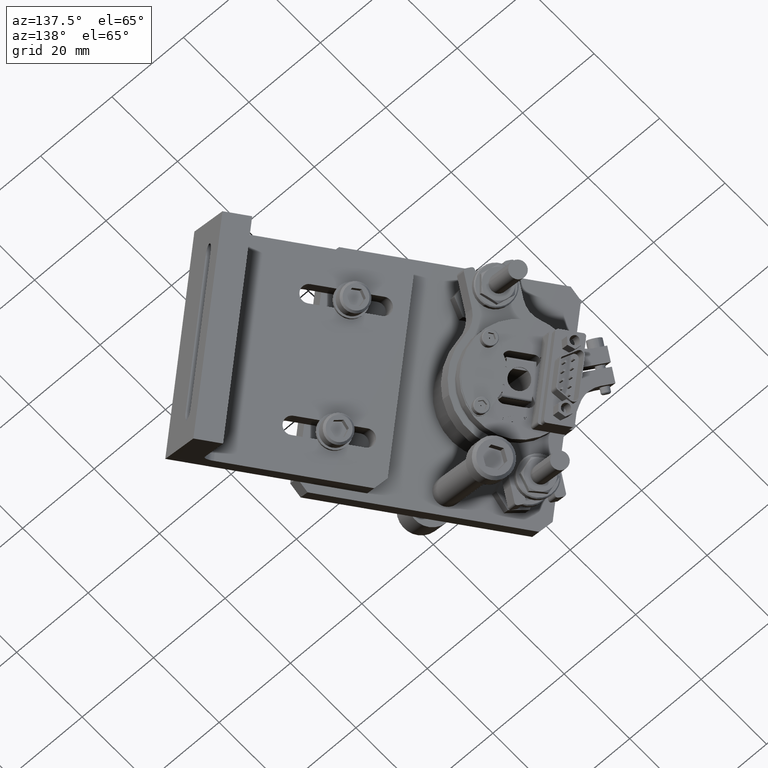
[diagram: clean part render]
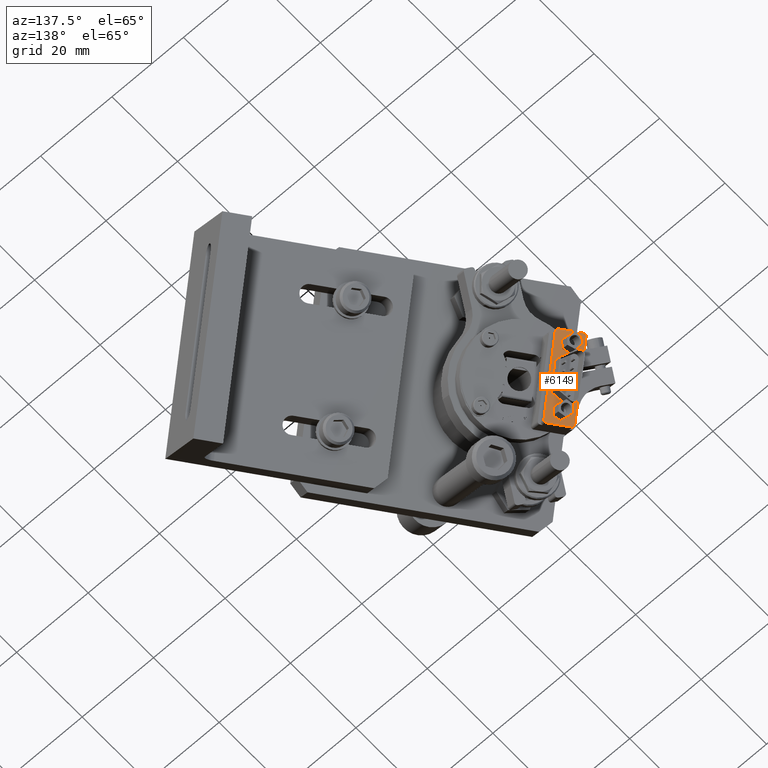
[diagram: same view with one face highlighted and labeled with its STEP entity id]
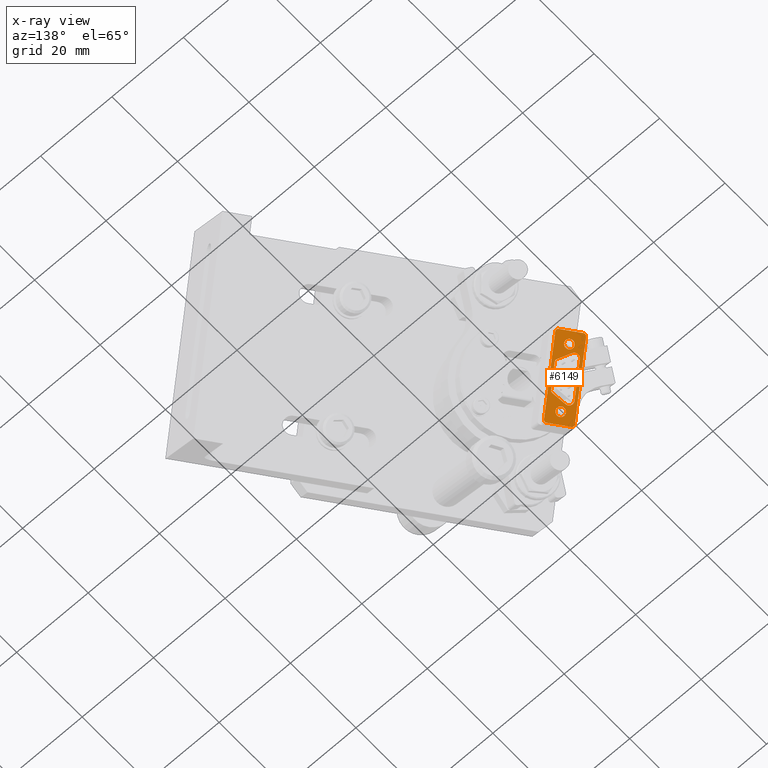
[diagram: x-ray of the same camera — body ghosted, the highlighted face saturated]
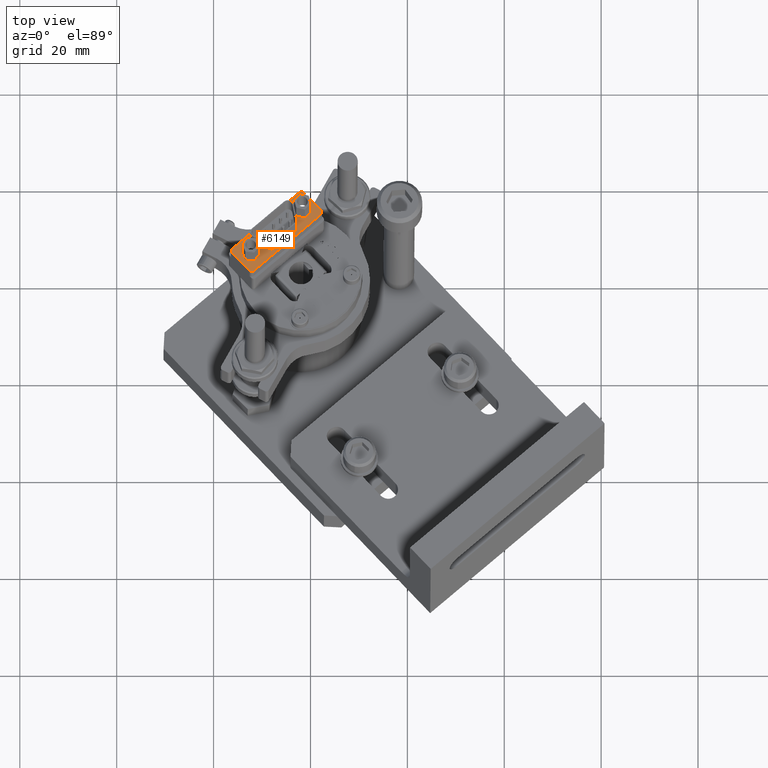
[diagram: same view with one face highlighted and labeled with its STEP entity id]
A machine part, auxiliary view. The second image highlights one B-rep face of the part: STEP entity #6149.
The next image is the same camera in x-ray: the body ghosted, the highlighted face saturated — about 0% of this face is hidden behind the body in this view.
A second angle (top view) of the same face is appended — the face is thin or edge-on in the first view.
In plain terms, the highlighted planar face has unit normal (-0.0041, -0.3425, -0.9395).
Its self-contained STEP definition (entity closure, byte-faithful):
#2667 = EDGE_CURVE ( 'NONE', #3243, #3244, #8593, .T. ) ;
#2717 = EDGE_CURVE ( 'NONE', #3277, #3278, #8658, .T. ) ;
#2721 = EDGE_CURVE ( 'NONE', #3278, #3281, #8668, .T. ) ;
#2724 = EDGE_CURVE ( 'NONE', #3281, #3283, #8670, .T. ) ;
#2727 = EDGE_CURVE ( 'NONE', #3283, #3285, #8678, .T. ) ;
#2730 = EDGE_CURVE ( 'NONE', #3285, #3287, #8680, .T. ) ;
#2734 = EDGE_CURVE ( 'NONE', #3287, #3243, #8689, .T. ) ;
#2735 = EDGE_CURVE ( 'NONE', #3244, #3289, #8688, .T. ) ;
#3243 = VERTEX_POINT ( 'NONE', #10372 ) ;
#3244 = VERTEX_POINT ( 'NONE', #10373 ) ;
#3277 = VERTEX_POINT ( 'NONE', #10406 ) ;
#3278 = VERTEX_POINT ( 'NONE', #10407 ) ;
#3281 = VERTEX_POINT ( 'NONE', #10410 ) ;
#3283 = VERTEX_POINT ( 'NONE', #10412 ) ;
#3285 = VERTEX_POINT ( 'NONE', #10414 ) ;
#3287 = VERTEX_POINT ( 'NONE', #10416 ) ;
#3289 = VERTEX_POINT ( 'NONE', #10418 ) ;
#3345 = VERTEX_POINT ( 'NONE', #10474 ) ;
#3346 = VERTEX_POINT ( 'NONE', #10475 ) ;
#3347 = VERTEX_POINT ( 'NONE', #10476 ) ;
#3348 = VERTEX_POINT ( 'NONE', #10477 ) ;
#3349 = VERTEX_POINT ( 'NONE', #10478 ) ;
#3350 = VERTEX_POINT ( 'NONE', #10479 ) ;
#3351 = VERTEX_POINT ( 'NONE', #10480 ) ;
#3352 = VERTEX_POINT ( 'NONE', #10481 ) ;
#3353 = VERTEX_POINT ( 'NONE', #10482 ) ;
#3354 = VERTEX_POINT ( 'NONE', #10483 ) ;
#3355 = VERTEX_POINT ( 'NONE', #10484 ) ;
#3356 = VERTEX_POINT ( 'NONE', #10485 ) ;
#6149 = ADVANCED_FACE ( 'NONE', ( #9040, #9041, #9042, #9043 ), #11612, .F. ) ;
#7514 = AXIS2_PLACEMENT_3D ( 'NONE', #9636, #9637, #9638 ) ;
#7547 = AXIS2_PLACEMENT_3D ( 'NONE', #9777, #9778, #9779 ) ;
#7549 = AXIS2_PLACEMENT_3D ( 'NONE', #9791, #9792, #9793 ) ;
#7552 = AXIS2_PLACEMENT_3D ( 'NONE', #9808, #9809, #9810 ) ;
#7740 = AXIS2_PLACEMENT_3D ( 'NONE', #11613, #11614, #11615 ) ;
#7800 = AXIS2_PLACEMENT_3D ( 'NONE', #12008, #12009, #12010 ) ;
#7801 = AXIS2_PLACEMENT_3D ( 'NONE', #12019, #12020, #12021 ) ;
#7802 = AXIS2_PLACEMENT_3D ( 'NONE', #12028, #12029, #12030 ) ;
#7803 = AXIS2_PLACEMENT_3D ( 'NONE', #12037, #12038, #12039 ) ;
#7804 = AXIS2_PLACEMENT_3D ( 'NONE', #12044, #12045, #12046 ) ;
#7805 = AXIS2_PLACEMENT_3D ( 'NONE', #12047, #12048, #12049 ) ;
#7806 = AXIS2_PLACEMENT_3D ( 'NONE', #12050, #12051, #12052 ) ;
#7807 = AXIS2_PLACEMENT_3D ( 'NONE', #12053, #12054, #12055 ) ;
#7808 = AXIS2_PLACEMENT_3D ( 'NONE', #12056, #12057, #12058 ) ;
#8593 = CIRCLE ( 'NONE', #7514, 0.04581782898034570500 ) ;
#8658 = LINE ( 'NONE', #9769, #8660 ) ;
#8660 = VECTOR ( 'NONE', #9770, 39.37007874015748100 ) ;
#8668 = CIRCLE ( 'NONE', #7547, 0.02814010095036812900 ) ;
#8670 = LINE ( 'NONE', #9785, #8672 ) ;
#8672 = VECTOR ( 'NONE', #9786, 39.37007874015748900 ) ;
#8678 = CIRCLE ( 'NONE', #7549, 0.04581782898034570500 ) ;
#8680 = LINE ( 'NONE', #9799, #8682 ) ;
#8682 = VECTOR ( 'NONE', #9800, 39.37007874015748100 ) ;
#8688 = LINE ( 'NONE', #9811, #8690 ) ;
#8689 = CIRCLE ( 'NONE', #7552, 0.04581782898034570500 ) ;
#8690 = VECTOR ( 'NONE', #9812, 39.37007874015748900 ) ;
#9040 = FACE_BOUND ( 'NONE', #17864, .T. ) ;
#9041 = FACE_BOUND ( 'NONE', #17863, .T. ) ;
#9042 = FACE_OUTER_BOUND ( 'NONE', #17862, .T. ) ;
#9043 = FACE_BOUND ( 'NONE', #17861, .T. ) ;
#9176 = CIRCLE ( 'NONE', #7800, 0.02500000000000000500 ) ;
#9180 = LINE ( 'NONE', #12015, #9181 ) ;
#9181 = VECTOR ( 'NONE', #12016, 39.37007874015748100 ) ;
#9185 = CIRCLE ( 'NONE', #7801, 0.02500000000000000500 ) ;
#9187 = LINE ( 'NONE', #12024, #9188 ) ;
#9188 = VECTOR ( 'NONE', #12025, 39.37007874015748100 ) ;
#9192 = CIRCLE ( 'NONE', #7802, 0.02500000000000000500 ) ;
#9196 = LINE ( 'NONE', #12035, #9197 ) ;
#9197 = VECTOR ( 'NONE', #12036, 39.37007874015748100 ) ;
#9199 = CIRCLE ( 'NONE', #7803, 0.02500000000000000500 ) ;
#9201 = LINE ( 'NONE', #12042, #9202 ) ;
#9202 = VECTOR ( 'NONE', #12043, 39.37007874015748100 ) ;
#9203 = CIRCLE ( 'NONE', #7804, 0.04399999999999999700 ) ;
#9204 = CIRCLE ( 'NONE', #7805, 0.04399999999999999700 ) ;
#9205 = CIRCLE ( 'NONE', #7806, 0.04400000000000006700 ) ;
#9206 = CIRCLE ( 'NONE', #7807, 0.04400000000000006700 ) ;
#9207 = CIRCLE ( 'NONE', #7808, 0.02814010095036819900 ) ;
#9636 = CARTESIAN_POINT ( 'NONE',  ( 0.2026667568198559400, 0.2649675197779065600, -1.252784718323217300 ) ) ;
#9637 = DIRECTION ( 'NONE',  ( 0.0000000000000000000, 0.0000000000000000000, -1.000000000000000000 ) ) ;
#9638 = DIRECTION ( 'NONE',  ( -1.000000000000000000, 0.0000000000000000000, 0.0000000000000000000 ) ) ;
#9769 = CARTESIAN_POINT ( 'NONE',  ( 0.1462483841439356800, 0.1072853487582522000, -1.252784718323217300 ) ) ;
#9770 = DIRECTION ( 'NONE',  ( -1.000000000000000000, 3.405543026300700000E-016, 0.0000000000000000000 ) ) ;
#9777 = CARTESIAN_POINT ( 'NONE',  ( -0.08927921254353267400, 0.1354254497086204400, -1.252784718323217300 ) ) ;
#9778 = DIRECTION ( 'NONE',  ( 0.0000000000000000000, 0.0000000000000000000, -1.000000000000000000 ) ) ;
#9779 = DIRECTION ( 'NONE',  ( 1.000000000000000000, 0.0000000000000000000, 0.0000000000000000000 ) ) ;
#9785 = CARTESIAN_POINT ( 'NONE',  ( -0.1850854019913690300, 0.2415608253847597600, -1.252784718323217300 ) ) ;
#9786 = DIRECTION ( 'NONE',  ( -0.5108643275784094900, 0.8596613512353916700, 0.0000000000000000000 ) ) ;
#9791 = CARTESIAN_POINT ( 'NONE',  ( -0.1456975852194528900, 0.2649675197779066100, -1.252784718323217300 ) ) ;
#9792 = DIRECTION ( 'NONE',  ( 0.0000000000000000000, 0.0000000000000000000, -1.000000000000000000 ) ) ;
#9793 = DIRECTION ( 'NONE',  ( 1.000000000000000000, 0.0000000000000000000, 0.0000000000000000000 ) ) ;
#9799 = CARTESIAN_POINT ( 'NONE',  ( 0.2026667568198559400, 0.3107853487582522600, -1.252784718323217300 ) ) ;
#9800 = DIRECTION ( 'NONE',  ( 1.000000000000000000, -1.731133083254708900E-016, 0.0000000000000000000 ) ) ;
#9808 = CARTESIAN_POINT ( 'NONE',  ( 0.2026667568198559400, 0.2649675197779065600, -1.252784718323217300 ) ) ;
#9809 = DIRECTION ( 'NONE',  ( 0.0000000000000000000, 0.0000000000000000000, -1.000000000000000000 ) ) ;
#9810 = DIRECTION ( 'NONE',  ( -1.000000000000000000, 0.0000000000000000000, 0.0000000000000000000 ) ) ;
#9811 = CARTESIAN_POINT ( 'NONE',  ( 0.2420545735917721000, 0.2415608253847597000, -1.252784718323217300 ) ) ;
#9812 = DIRECTION ( 'NONE',  ( -0.5108643275784093800, -0.8596613512353916700, 0.0000000000000000000 ) ) ;
#10372 = CARTESIAN_POINT ( 'NONE',  ( 0.2484845858002016300, 0.2649675197779065600, -1.252784718323217300 ) ) ;
#10373 = CARTESIAN_POINT ( 'NONE',  ( 0.2420545735917720200, 0.2415608253847597000, -1.252784718323217300 ) ) ;
#10406 = CARTESIAN_POINT ( 'NONE',  ( 0.1462483841439356800, 0.1072853487582522000, -1.252784718323217300 ) ) ;
#10407 = CARTESIAN_POINT ( 'NONE',  ( -0.08927921254353267400, 0.1072853487582523100, -1.252784718323217300 ) ) ;
#10410 = CARTESIAN_POINT ( 'NONE',  ( -0.1134701697504264800, 0.1210496759586221100, -1.252784718323217300 ) ) ;
#10412 = CARTESIAN_POINT ( 'NONE',  ( -0.1850854019913690000, 0.2415608253847597600, -1.252784718323217300 ) ) ;
#10414 = CARTESIAN_POINT ( 'NONE',  ( -0.1456975852194529500, 0.3107853487582522600, -1.252784718323217300 ) ) ;
#10416 = CARTESIAN_POINT ( 'NONE',  ( 0.2026667568198559400, 0.3107853487582522600, -1.252784718323217300 ) ) ;
#10418 = CARTESIAN_POINT ( 'NONE',  ( 0.1704393413508295800, 0.1210496759586220400, -1.252784718323217300 ) ) ;
#10474 = CARTESIAN_POINT ( 'NONE',  ( -0.3640154141997986000, 0.1040353487582527200, -1.252784718323217300 ) ) ;
#10475 = CARTESIAN_POINT ( 'NONE',  ( -0.3390154141997985800, 0.07903534875825278500, -1.252784718323217300 ) ) ;
#10476 = CARTESIAN_POINT ( 'NONE',  ( -0.3640154141997986000, 0.3140353487582525600, -1.252784718323217300 ) ) ;
#10477 = CARTESIAN_POINT ( 'NONE',  ( -0.3390154141997985800, 0.3390353487582525300, -1.252784718323217300 ) ) ;
#10478 = CARTESIAN_POINT ( 'NONE',  ( 0.3959845858002015200, 0.3390353487582525300, -1.252784718323217300 ) ) ;
#10479 = CARTESIAN_POINT ( 'NONE',  ( 0.4209845858002015400, 0.3140353487582525100, -1.252784718323217300 ) ) ;
#10480 = CARTESIAN_POINT ( 'NONE',  ( 0.4209845858002015400, 0.1040353487582524900, -1.252784718323217300 ) ) ;
#10481 = CARTESIAN_POINT ( 'NONE',  ( 0.3959845858002015200, 0.07903534875825254900, -1.252784718323217300 ) ) ;
#10482 = CARTESIAN_POINT ( 'NONE',  ( -0.2980154141997984300, 0.2090353487582525500, -1.252784718323217300 ) ) ;
#10483 = CARTESIAN_POINT ( 'NONE',  ( -0.2100154141997984700, 0.2090353487582525500, -1.252784718323217300 ) ) ;
#10484 = CARTESIAN_POINT ( 'NONE',  ( 0.2669845858002014000, 0.2090353487582525000, -1.252784718323217300 ) ) ;
#10485 = CARTESIAN_POINT ( 'NONE',  ( 0.3549845858002015400, 0.2090353487582525000, -1.252784718323217300 ) ) ;
#11612 = PLANE ( 'NONE',  #7740 ) ;
#11613 = CARTESIAN_POINT ( 'NONE',  ( 0.3959845858002015200, 0.3390353487582524200, -1.252784718323217300 ) ) ;
#11614 = DIRECTION ( 'NONE',  ( -0.0000000000000000000, 0.0000000000000000000, 1.000000000000000000 ) ) ;
#11615 = DIRECTION ( 'NONE',  ( 1.000000000000000000, -5.058318755843900100E-017, 0.0000000000000000000 ) ) ;
#12008 = CARTESIAN_POINT ( 'NONE',  ( -0.3390154141997985800, 0.1040353487582527200, -1.252784718323217300 ) ) ;
#12009 = DIRECTION ( 'NONE',  ( 0.0000000000000000000, -0.0000000000000000000, 1.000000000000000000 ) ) ;
#12010 = DIRECTION ( 'NONE',  ( -1.000000000000000000, 0.0000000000000000000, 0.0000000000000000000 ) ) ;
#12015 = CARTESIAN_POINT ( 'NONE',  ( -0.3640154141997986000, 0.3390353487582524200, -1.252784718323217300 ) ) ;
#12016 = DIRECTION ( 'NONE',  ( 6.202556501065874700E-017, 1.000000000000000000, 0.0000000000000000000 ) ) ;
#12019 = CARTESIAN_POINT ( 'NONE',  ( -0.3390154141997985800, 0.3140353487582525600, -1.252784718323217300 ) ) ;
#12020 = DIRECTION ( 'NONE',  ( 0.0000000000000000000, -0.0000000000000000000, 1.000000000000000000 ) ) ;
#12021 = DIRECTION ( 'NONE',  ( 1.000000000000000000, 0.0000000000000000000, 0.0000000000000000000 ) ) ;
#12024 = CARTESIAN_POINT ( 'NONE',  ( 0.3959845858002015200, 0.3390353487582524200, -1.252784718323217300 ) ) ;
#12025 = DIRECTION ( 'NONE',  ( -1.000000000000000000, 5.058318755843901300E-017, 0.0000000000000000000 ) ) ;
#12028 = CARTESIAN_POINT ( 'NONE',  ( 0.3959845858002015200, 0.3140353487582525100, -1.252784718323217300 ) ) ;
#12029 = DIRECTION ( 'NONE',  ( 0.0000000000000000000, -0.0000000000000000000, 1.000000000000000000 ) ) ;
#12030 = DIRECTION ( 'NONE',  ( -1.000000000000000000, 0.0000000000000000000, 0.0000000000000000000 ) ) ;
#12035 = CARTESIAN_POINT ( 'NONE',  ( 0.4209845858002015400, 0.3390353487582523100, -1.252784718323217300 ) ) ;
#12036 = DIRECTION ( 'NONE',  ( 6.043911490407662300E-017, -1.000000000000000000, 0.0000000000000000000 ) ) ;
#12037 = CARTESIAN_POINT ( 'NONE',  ( 0.3959845858002015200, 0.1040353487582524900, -1.252784718323217300 ) ) ;
#12038 = DIRECTION ( 'NONE',  ( 0.0000000000000000000, -0.0000000000000000000, 1.000000000000000000 ) ) ;
#12039 = DIRECTION ( 'NONE',  ( 1.000000000000000000, 0.0000000000000000000, 0.0000000000000000000 ) ) ;
#12042 = CARTESIAN_POINT ( 'NONE',  ( 0.3959845858002015200, 0.07903534875825254900, -1.252784718323217300 ) ) ;
#12043 = DIRECTION ( 'NONE',  ( 1.000000000000000000, -3.293431869119352700E-016, 0.0000000000000000000 ) ) ;
#12044 = CARTESIAN_POINT ( 'NONE',  ( -0.2540154141997984500, 0.2090353487582525500, -1.252784718323217300 ) ) ;
#12045 = DIRECTION ( 'NONE',  ( 0.0000000000000000000, 0.0000000000000000000, -1.000000000000000000 ) ) ;
#12046 = DIRECTION ( 'NONE',  ( -1.000000000000000000, 0.0000000000000000000, 0.0000000000000000000 ) ) ;
#12047 = CARTESIAN_POINT ( 'NONE',  ( -0.2540154141997984500, 0.2090353487582525500, -1.252784718323217300 ) ) ;
#12048 = DIRECTION ( 'NONE',  ( 0.0000000000000000000, 0.0000000000000000000, -1.000000000000000000 ) ) ;
#12049 = DIRECTION ( 'NONE',  ( -1.000000000000000000, 0.0000000000000000000, 0.0000000000000000000 ) ) ;
#12050 = CARTESIAN_POINT ( 'NONE',  ( 0.3109845858002014400, 0.2090353487582525000, -1.252784718323217300 ) ) ;
#12051 = DIRECTION ( 'NONE',  ( 0.0000000000000000000, 0.0000000000000000000, -1.000000000000000000 ) ) ;
#12052 = DIRECTION ( 'NONE',  ( -1.000000000000000000, 0.0000000000000000000, 0.0000000000000000000 ) ) ;
#12053 = CARTESIAN_POINT ( 'NONE',  ( 0.3109845858002014400, 0.2090353487582525000, -1.252784718323217300 ) ) ;
#12054 = DIRECTION ( 'NONE',  ( 0.0000000000000000000, 0.0000000000000000000, -1.000000000000000000 ) ) ;
#12055 = DIRECTION ( 'NONE',  ( -1.000000000000000000, 0.0000000000000000000, 0.0000000000000000000 ) ) ;
#12056 = CARTESIAN_POINT ( 'NONE',  ( 0.1462483841439356800, 0.1354254497086203900, -1.252784718323217300 ) ) ;
#12057 = DIRECTION ( 'NONE',  ( 0.0000000000000000000, 0.0000000000000000000, -1.000000000000000000 ) ) ;
#12058 = DIRECTION ( 'NONE',  ( -1.000000000000000000, 0.0000000000000000000, 0.0000000000000000000 ) ) ;
#16527 = EDGE_CURVE ( 'NONE', #3345, #3346, #9176, .T. ) ;
#16530 = EDGE_CURVE ( 'NONE', #3345, #3347, #9180, .T. ) ;
#16532 = EDGE_CURVE ( 'NONE', #3348, #3347, #9185, .T. ) ;
#16534 = EDGE_CURVE ( 'NONE', #3349, #3348, #9187, .T. ) ;
#16536 = EDGE_CURVE ( 'NONE', #3350, #3349, #9192, .T. ) ;
#16539 = EDGE_CURVE ( 'NONE', #3350, #3351, #9196, .T. ) ;
#16540 = EDGE_CURVE ( 'NONE', #3352, #3351, #9199, .T. ) ;
#16542 = EDGE_CURVE ( 'NONE', #3346, #3352, #9201, .T. ) ;
#16543 = EDGE_CURVE ( 'NONE', #3353, #3354, #9203, .T. ) ;
#16544 = EDGE_CURVE ( 'NONE', #3354, #3353, #9204, .T. ) ;
#16545 = EDGE_CURVE ( 'NONE', #3355, #3356, #9205, .T. ) ;
#16546 = EDGE_CURVE ( 'NONE', #3356, #3355, #9206, .T. ) ;
#16547 = EDGE_CURVE ( 'NONE', #3289, #3277, #9207, .T. ) ;
#17861 = EDGE_LOOP ( 'NONE', ( #18187, #18188, #18189, #18190, #18191, #18192, #18193, #18194, #18195 ) ) ;
#17862 = EDGE_LOOP ( 'NONE', ( #18179, #18180, #18181, #18182, #18183, #18184, #18185, #18186 ) ) ;
#17863 = EDGE_LOOP ( 'NONE', ( #18177, #18178 ) ) ;
#17864 = EDGE_LOOP ( 'NONE', ( #18175, #18176 ) ) ;
#18175 = ORIENTED_EDGE ( 'NONE', *, *, #16543, .F. ) ;
#18176 = ORIENTED_EDGE ( 'NONE', *, *, #16544, .F. ) ;
#18177 = ORIENTED_EDGE ( 'NONE', *, *, #16545, .F. ) ;
#18178 = ORIENTED_EDGE ( 'NONE', *, *, #16546, .F. ) ;
#18179 = ORIENTED_EDGE ( 'NONE', *, *, #16542, .F. ) ;
#18180 = ORIENTED_EDGE ( 'NONE', *, *, #16527, .F. ) ;
#18181 = ORIENTED_EDGE ( 'NONE', *, *, #16530, .T. ) ;
#18182 = ORIENTED_EDGE ( 'NONE', *, *, #16532, .F. ) ;
#18183 = ORIENTED_EDGE ( 'NONE', *, *, #16534, .F. ) ;
#18184 = ORIENTED_EDGE ( 'NONE', *, *, #16536, .F. ) ;
#18185 = ORIENTED_EDGE ( 'NONE', *, *, #16539, .T. ) ;
#18186 = ORIENTED_EDGE ( 'NONE', *, *, #16540, .F. ) ;
#18187 = ORIENTED_EDGE ( 'NONE', *, *, #16547, .F. ) ;
#18188 = ORIENTED_EDGE ( 'NONE', *, *, #2735, .F. ) ;
#18189 = ORIENTED_EDGE ( 'NONE', *, *, #2667, .F. ) ;
#18190 = ORIENTED_EDGE ( 'NONE', *, *, #2734, .F. ) ;
#18191 = ORIENTED_EDGE ( 'NONE', *, *, #2730, .F. ) ;
#18192 = ORIENTED_EDGE ( 'NONE', *, *, #2727, .F. ) ;
#18193 = ORIENTED_EDGE ( 'NONE', *, *, #2724, .F. ) ;
#18194 = ORIENTED_EDGE ( 'NONE', *, *, #2721, .F. ) ;
#18195 = ORIENTED_EDGE ( 'NONE', *, *, #2717, .F. ) ;